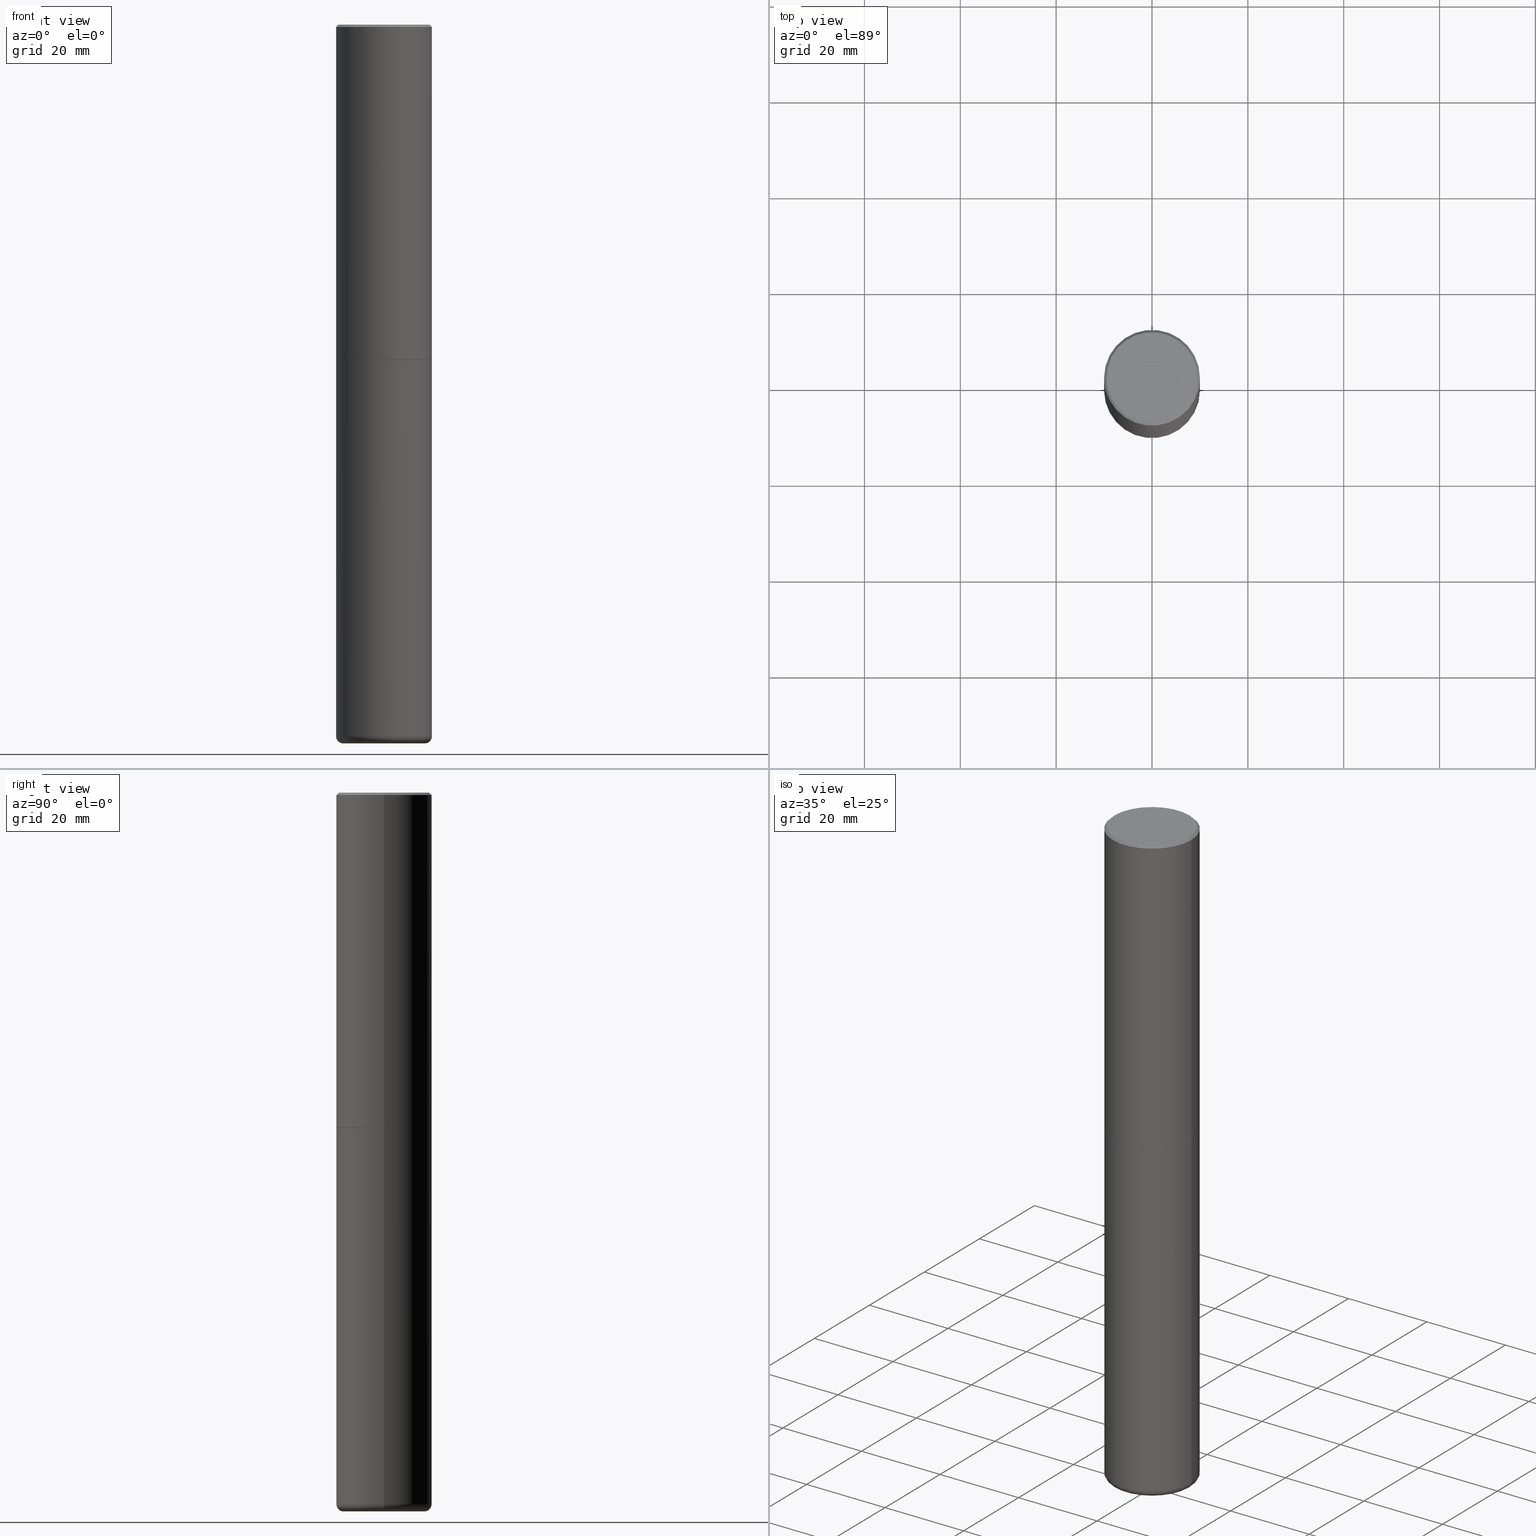
[diagram: canonical four-view strip — front | top / right | iso, engineering-drawing reading convention]
A machine part, canonical four-view strip (front | top / right | iso — engineering-drawing reading convention). The complete STEP part file that produces these views, byte-faithful:
ISO-10303-21;
HEADER;
FILE_DESCRIPTION (( 'STEP AP203' ),
    '1' );
FILE_NAME ('44882.STEP',
    '2024-03-04T13:11:06',
    ( '' ),
    ( '' ),
    'SwSTEP 2.0',
    'SolidWorks 2023',
    '' );
FILE_SCHEMA (( 'CONFIG_CONTROL_DESIGN' ));
ENDSEC;

DATA;
#1 = LOCAL_TIME ( 8, 11, 6.000000000000000000, #58 ) ;
#2 = EDGE_CURVE ( 'NONE', #274, #20, #152, .T. ) ;
#3 = FACE_OUTER_BOUND ( 'NONE', #157, .T. ) ;
#4 = PERSON_AND_ORGANIZATION ( #118, #30 ) ;
#5 = DIRECTION ( 'NONE',  ( -2.445468806185136597E-29, 3.491481338843145583E-15, 1.000000000000000000 ) ) ;
#6 = LINE ( 'NONE', #253, #263 ) ;
#7 =( GEOMETRIC_REPRESENTATION_CONTEXT ( 3 ) GLOBAL_UNCERTAINTY_ASSIGNED_CONTEXT ( ( #303 ) ) GLOBAL_UNIT_ASSIGNED_CONTEXT ( ( #276, #181, #353 ) ) REPRESENTATION_CONTEXT ( 'NONE', 'WORKASPACE' ) );
#8 = CARTESIAN_POINT ( 'NONE',  ( 4.890937612370294178E-31, -6.982962677686321191E-17, -0.02000000000000008715 ) ) ;
#9 = FACE_OUTER_BOUND ( 'NONE', #377, .T. ) ;
#10 = DIRECTION ( 'NONE',  ( -2.445468806185136597E-29, 3.491481338843145583E-15, 1.000000000000000000 ) ) ;
#11 = CARTESIAN_POINT ( 'NONE',  ( 0.3937000000000000499, -1.237136582792290287E-14, -2.755899999999998240 ) ) ;
#12 = CC_DESIGN_DATE_AND_TIME_ASSIGNMENT ( #161, #119, ( #140 ) ) ;
#13 = CIRCLE ( 'NONE', #270, 0.3937000000000000499 ) ;
#14 = DIRECTION ( 'NONE',  ( -2.445468806185136597E-29, 3.491481338843145583E-15, 1.000000000000000000 ) ) ;
#15 = CARTESIAN_POINT ( 'NONE',  ( 0.3937000000000002164, -2.749192406205084794E-15, 1.919750796630861012E-29 ) ) ;
#16 = CC_DESIGN_PERSON_AND_ORGANIZATION_ASSIGNMENT ( #124, #94, ( #168 ) ) ;
#17 = FACE_OUTER_BOUND ( 'NONE', #417, .T. ) ;
#18 = MANIFOLD_SOLID_BREP ( 'Body-Move/Copy2[1]', #178 ) ;
#19 = ORIENTED_EDGE ( 'NONE', *, *, #304, .F. ) ;
#20 = VERTEX_POINT ( 'NONE', #57 ) ;
#21 = CARTESIAN_POINT ( 'NONE',  ( 0.3926999999999999935, -1.236438286524521528E-14, -2.755899999999998240 ) ) ;
#22 = ADVANCED_FACE ( 'NONE', ( #95 ), #415, .F. ) ;
#23 = AXIS2_PLACEMENT_3D ( 'NONE', #192, #5, #31 ) ;
#24 = CIRCLE ( 'NONE', #321, 0.3937000000000001054 ) ;
#25 = CALENDAR_DATE ( 2024, 4, 3 ) ;
#26 = CARTESIAN_POINT ( 'NONE',  ( 2.609533152651357803E-15, 0.3737000000000000322, -1.270618476404880419E-15 ) ) ;
#27 = ADVANCED_FACE ( 'NONE', ( #127 ), #390, .T. ) ;
#28 = ORIENTED_EDGE ( 'NONE', *, *, #2, .F. ) ;
#29 = CIRCLE ( 'NONE', #34, 0.3937000000000004385 ) ;
#30 = ORGANIZATION ( 'UNSPECIFIED', 'UNSPECIFIED', '' ) ;
#31 = DIRECTION ( 'NONE',  ( 1.000000000000000000, -6.982962677686263555E-15, 4.883557194083111219E-29 ) ) ;
#32 = CARTESIAN_POINT ( 'NONE',  ( -0.3937000000000002164, -1.761518974872504126E-14, -5.846399999999999153 ) ) ;
#33 = CONICAL_SURFACE ( 'NONE', #91, 0.3937000000000000499, 0.7853981633974442822 ) ;
#34 = AXIS2_PLACEMENT_3D ( 'NONE', #45, #182, #74 ) ;
#35 = PLANE ( 'NONE',  #319 ) ;
#36 = DIRECTION ( 'NONE',  ( 0.7071067811867647324, -2.468850131084532135E-15, 0.7071067811863303021 ) ) ;
#37 = EDGE_CURVE ( 'NONE', #75, #260, #6, .T. ) ;
#38 = DIRECTION ( 'NONE',  ( 1.000000000000000000, -6.982962677686266711E-15, 0.000000000000000000 ) ) ;
#39 = AXIS2_PLACEMENT_3D ( 'NONE', #138, #284, #116 ) ;
#40 = LINE ( 'NONE', #308, #416 ) ;
#41 = LOCAL_TIME ( 8, 11, 6.000000000000000000, #123 ) ;
#42 = LINE ( 'NONE', #369, #313 ) ;
#43 = ADVANCED_FACE ( 'NONE', ( #188 ), #130, .T. ) ;
#44 = LINE ( 'NONE', #273, #136 ) ;
#45 = CARTESIAN_POINT ( 'NONE',  ( 6.737022014159429266E-29, -9.618681940378976650E-15, -2.754899999999998350 ) ) ;
#46 = ADVANCED_FACE ( 'NONE', ( #9 ), #35, .F. ) ;
#47 = ORIENTED_EDGE ( 'NONE', *, *, #2, .T. ) ;
#48 = PERSON_AND_ORGANIZATION_ROLE ( 'creator' ) ;
#49 = APPLICATION_CONTEXT ( 'configuration controlled 3d designs of mechanical parts and assemblies' ) ;
#50 = ORIENTED_EDGE ( 'NONE', *, *, #403, .F. ) ;
#51 = DIMENSIONAL_EXPONENTS ( 1.000000000000000000, 0.000000000000000000, 0.000000000000000000, 0.000000000000000000, 0.000000000000000000, 0.000000000000000000, 0.000000000000000000 ) ;
#52 = EDGE_LOOP ( 'NONE', ( #341, #209 ) ) ;
#53 = EDGE_CURVE ( 'NONE', #208, #160, #142, .T. ) ;
#54 = ORIENTED_EDGE ( 'NONE', *, *, #37, .F. ) ;
#55 = SHAPE_DEFINITION_REPRESENTATION ( #77, #400 ) ;
#56 = DIRECTION ( 'NONE',  ( 1.000000000000000000, -6.982962677686266711E-15, 4.876176775795935793E-29 ) ) ;
#57 = CARTESIAN_POINT ( 'NONE',  ( -0.3346000000000000085, -1.792832840070497370E-14, -5.905499999999999972 ) ) ;
#58 = COORDINATED_UNIVERSAL_TIME_OFFSET ( 5, 0, .BEHIND. ) ;
#59 = AXIS2_PLACEMENT_3D ( 'NONE', #134, #235, #105 ) ;
#60 = CC_DESIGN_APPROVAL ( #166, ( #265 ) ) ;
#61 = DIRECTION ( 'NONE',  ( -1.000000000000000000, 6.982962677686265922E-15, -4.876176775795935793E-29 ) ) ;
#62 = DIRECTION ( 'NONE',  ( -2.445468806185136597E-29, 3.491481338843145583E-15, 1.000000000000000000 ) ) ;
#63 = ORIENTED_EDGE ( 'NONE', *, *, #304, .T. ) ;
#64 = CC_DESIGN_PERSON_AND_ORGANIZATION_ASSIGNMENT ( #382, #48, ( #140 ) ) ;
#65 = DIRECTION ( 'NONE',  ( -2.445468806185136597E-29, 3.491481338843145583E-15, 1.000000000000000000 ) ) ;
#66 = DIRECTION ( 'NONE',  ( -2.445468806185136597E-29, 3.491481338843145583E-15, 1.000000000000000000 ) ) ;
#67 = CC_DESIGN_APPROVAL ( #285, ( #168 ) ) ;
#68 = DIRECTION ( 'NONE',  ( -1.000000000000000000, 6.982962677686265922E-15, 0.000000000000000000 ) ) ;
#69 = ADVANCED_FACE ( 'NONE', ( #106 ), #33, .T. ) ;
#70 = CARTESIAN_POINT ( 'NONE',  ( -0.3937000000000000499, 2.679362779428219918E-15, -0.02000000000000008715 ) ) ;
#71 = DIRECTION ( 'NONE',  ( 0.7071067811865446862, -7.319954787623245001E-15, -0.7071067811865503483 ) ) ;
#72 = LINE ( 'NONE', #76, #234 ) ;
#73 = AXIS2_PLACEMENT_3D ( 'NONE', #26, #163, #61 ) ;
#74 = DIRECTION ( 'NONE',  ( 1.000000000000000000, -6.982962677686265922E-15, 0.000000000000000000 ) ) ;
#75 = VERTEX_POINT ( 'NONE', #32 ) ;
#76 = CARTESIAN_POINT ( 'NONE',  ( 0.3937000000000001054, -2.749192406205084005E-15, 1.919750796630860452E-29 ) ) ;
#77 = PRODUCT_DEFINITION_SHAPE ( 'NONE', 'NONE',  #140 ) ;
#78 = DIRECTION ( 'NONE',  ( -2.445468806185136597E-29, 3.491481338843145583E-15, 1.000000000000000000 ) ) ;
#79 = VERTEX_POINT ( 'NONE', #333 ) ;
#80 = CARTESIAN_POINT ( 'NONE',  ( -0.3937000000000000499, -1.221997820987767425E-14, -2.755899999999998240 ) ) ;
#81 = EDGE_LOOP ( 'NONE', ( #93, #214, #312, #87 ) ) ;
#82 = APPROVAL_PERSON_ORGANIZATION ( #183, #166, #190 ) ;
#83 = EDGE_CURVE ( 'NONE', #75, #207, #401, .T. ) ;
#84 = ORIENTED_EDGE ( 'NONE', *, *, #216, .F. ) ;
#85 = MECHANICAL_CONTEXT ( 'NONE', #49, 'mechanical' ) ;
#86 = DIRECTION ( 'NONE',  ( -2.445468806185136597E-29, 3.491481338843145583E-15, 1.000000000000000000 ) ) ;
#87 = ORIENTED_EDGE ( 'NONE', *, *, #177, .F. ) ;
#88 = EDGE_LOOP ( 'NONE', ( #350, #295, #84, #409 ) ) ;
#89 = APPROVAL_DATE_TIME ( #155, #166 ) ;
#90 = EDGE_CURVE ( 'NONE', #291, #293, #367, .T. ) ;
#91 = AXIS2_PLACEMENT_3D ( 'NONE', #8, #395, #68 ) ;
#92 = COORDINATED_UNIVERSAL_TIME_OFFSET ( 5, 0, .BEHIND. ) ;
#93 = ORIENTED_EDGE ( 'NONE', *, *, #121, .F. ) ;
#94 = PERSON_AND_ORGANIZATION_ROLE ( 'creator' ) ;
#95 = FACE_OUTER_BOUND ( 'NONE', #52, .T. ) ;
#96 = VECTOR ( 'NONE', #358, 39.37007874015748143 ) ;
#97 = ORIENTED_EDGE ( 'NONE', *, *, #162, .T. ) ;
#98 = CARTESIAN_POINT ( 'NONE',  ( 6.739467482965614869E-29, -9.622173421717819657E-15, -2.755899999999998240 ) ) ;
#99 = DIRECTION ( 'NONE',  ( -2.438088387897960049E-29, 3.491481338843145188E-15, 1.000000000000000000 ) ) ;
#100 = DIRECTION ( 'NONE',  ( -2.445468806185136597E-29, 3.491481338843145583E-15, 1.000000000000000000 ) ) ;
#101 = ADVANCED_FACE ( 'NONE', ( #175 ), #230, .T. ) ;
#102 = DIRECTION ( 'NONE',  ( 1.000000000000000000, -6.982962677686265133E-15, 0.000000000000000000 ) ) ;
#103 = DIRECTION ( 'NONE',  ( 2.438088387897960049E-29, -3.491481338843145188E-15, -1.000000000000000000 ) ) ;
#104 = FACE_OUTER_BOUND ( 'NONE', #81, .T. ) ;
#105 = DIRECTION ( 'NONE',  ( 1.000000000000000000, -6.982962677686267499E-15, 0.000000000000000000 ) ) ;
#106 = FACE_OUTER_BOUND ( 'NONE', #247, .T. ) ;
#107 = DIRECTION ( 'NONE',  ( -2.445468806185136877E-29, 3.491481338843145188E-15, 1.000000000000000000 ) ) ;
#108 = LOCAL_TIME ( 8, 11, 6.000000000000000000, #376 ) ;
#109 = DIRECTION ( 'NONE',  ( -2.445468806185136597E-29, 3.491481338843145583E-15, 1.000000000000000000 ) ) ;
#110 = CARTESIAN_POINT ( 'NONE',  ( 6.739467482965614869E-29, -9.622173421717819657E-15, -2.755899999999998240 ) ) ;
#111 = ORIENTED_EDGE ( 'NONE', *, *, #396, .F. ) ;
#112 = DIRECTION ( 'NONE',  ( -2.445468806185136597E-29, 3.491481338843145583E-15, 1.000000000000000000 ) ) ;
#113 = CARTESIAN_POINT ( 'NONE',  ( 0.3737000000000000322, -2.667287895133368753E-15, 6.829619984162503241E-17 ) ) ;
#114 = ADVANCED_FACE ( 'NONE', ( #392 ), #172, .T. ) ;
#115 = ORIENTED_EDGE ( 'NONE', *, *, #83, .T. ) ;
#116 = DIRECTION ( 'NONE',  ( 1.000000000000000000, -6.982962677686265133E-15, 0.000000000000000000 ) ) ;
#117 = CIRCLE ( 'NONE', #362, 0.3346000000000000085 ) ;
#118 = PERSON ( 'UNSPECIFIED', 'UNSPECIFIED', 'UNSPECIFIED', ('UNSPECIFIED'), ('UNSPECIFIED'), ('UNSPECIFIED') ) ;
#119 = DATE_TIME_ROLE ( 'creation_date' ) ;
#120 = EDGE_LOOP ( 'NONE', ( #280, #63, #282, #261 ) ) ;
#121 = EDGE_CURVE ( 'NONE', #291, #160, #170, .T. ) ;
#122 = ORIENTED_EDGE ( 'NONE', *, *, #121, .T. ) ;
#123 = COORDINATED_UNIVERSAL_TIME_OFFSET ( 5, 0, .BEHIND. ) ;
#124 = PERSON_AND_ORGANIZATION ( #118, #30 ) ;
#125 = AXIS2_PLACEMENT_3D ( 'NONE', #370, #78, #250 ) ;
#126 = ORIENTED_EDGE ( 'NONE', *, *, #146, .F. ) ;
#127 = FACE_OUTER_BOUND ( 'NONE', #413, .T. ) ;
#128 = PERSON_AND_ORGANIZATION_ROLE ( 'classification_officer' ) ;
#129 = DIRECTION ( 'NONE',  ( 1.000000000000000000, -6.982962677686269866E-15, 0.000000000000000000 ) ) ;
#130 = CONICAL_SURFACE ( 'NONE', #366, 0.3937000000000000499, 0.7853981633974442822 ) ;
#131 = CARTESIAN_POINT ( 'NONE',  ( 1.444171603492632270E-28, -2.061894304653819197E-14, -5.905499999999999972 ) ) ;
#132 = EDGE_CURVE ( 'NONE', #286, #293, #40, .T. ) ;
#133 = DIRECTION ( 'NONE',  ( -2.445468806185136597E-29, 3.491481338843145583E-15, 1.000000000000000000 ) ) ;
#134 = CARTESIAN_POINT ( 'NONE',  ( 6.739467482965614869E-29, -9.622173421717819657E-15, -2.755899999999998240 ) ) ;
#135 = DIRECTION ( 'NONE',  ( 1.000000000000000000, -6.982962677686265922E-15, 0.000000000000000000 ) ) ;
#136 = VECTOR ( 'NONE', #310, 39.37007874015748143 ) ;
#137 = DIRECTION ( 'NONE',  ( 1.000000000000000000, -6.982962677686265922E-15, 0.000000000000000000 ) ) ;
#138 = CARTESIAN_POINT ( 'NONE',  ( 6.739467482965614869E-29, -9.622173421717819657E-15, -2.755899999999998240 ) ) ;
#139 = ORIENTED_EDGE ( 'NONE', *, *, #396, .T. ) ;
#140 = PRODUCT_DEFINITION ( 'UNKNOWN', '', #168, #411 ) ;
#141 = CARTESIAN_POINT ( 'NONE',  ( 1.429718882848077913E-28, -2.041259649941256157E-14, -5.846399999999999153 ) ) ;
#142 = CIRCLE ( 'NONE', #299, 0.3937000000000000499 ) ;
#143 = AXIS2_PLACEMENT_3D ( 'NONE', #269, #66, #264 ) ;
#144 = DIRECTION ( 'NONE',  ( 1.000000000000000000, -6.982962677686265133E-15, 0.000000000000000000 ) ) ;
#145 = CC_DESIGN_APPROVAL ( #275, ( #140 ) ) ;
#146 = EDGE_CURVE ( 'NONE', #79, #160, #305, .T. ) ;
#147 = CARTESIAN_POINT ( 'NONE',  ( 0.3346000000000000085, -2.295544235849201754E-14, -5.905499999999999972 ) ) ;
#148 = VERTEX_POINT ( 'NONE', #11 ) ;
#149 = DIRECTION ( 'NONE',  ( 1.000000000000000000, -6.982962677686267499E-15, 0.000000000000000000 ) ) ;
#150 = APPROVAL_DATE_TIME ( #213, #285 ) ;
#151 = CARTESIAN_POINT ( 'NONE',  ( 0.000000000000000000, 0.000000000000000000, 0.000000000000000000 ) ) ;
#152 = CIRCLE ( 'NONE', #277, 0.3346000000000000085 ) ;
#153 = CONICAL_SURFACE ( 'NONE', #334, 0.3926999999999999935, 0.7853981633977554777 ) ;
#154 = LOCAL_TIME ( 8, 11, 6.000000000000000000, #92 ) ;
#155 = DATE_AND_TIME ( #25, #173 ) ;
#156 = DIRECTION ( 'NONE',  ( 0.000000000000000000, 0.000000000000000000, 1.000000000000000000 ) ) ;
#157 = EDGE_LOOP ( 'NONE', ( #54, #115, #180, #255 ) ) ;
#158 = DIRECTION ( 'NONE',  ( -1.000000000000000000, 7.105427357601027102E-15, 0.000000000000000000 ) ) ;
#159 = CIRCLE ( 'NONE', #205, 0.3926999999999999935 ) ;
#160 = VERTEX_POINT ( 'NONE', #70 ) ;
#161 = DATE_AND_TIME ( #252, #108 ) ;
#162 = EDGE_CURVE ( 'NONE', #20, #274, #117, .T. ) ;
#163 = DIRECTION ( 'NONE',  ( 2.438088387897960049E-29, -3.491481338843145188E-15, -1.000000000000000000 ) ) ;
#164 = DIRECTION ( 'NONE',  ( 1.000000000000000000, -6.982962677686296687E-15, 0.000000000000000000 ) ) ;
#165 = ORIENTED_EDGE ( 'NONE', *, *, #257, .F. ) ;
#166 = APPROVAL ( #348, 'UNSPECIFIED' ) ;
#167 = AXIS2_PLACEMENT_3D ( 'NONE', #256, #156, #387 ) ;
#168 = PRODUCT_DEFINITION_FORMATION_WITH_SPECIFIED_SOURCE ( 'ANY', '', #237, .NOT_KNOWN. ) ;
#169 = DIRECTION ( 'NONE',  ( 1.000000000000000000, -6.982962677686265922E-15, 4.876176775795935793E-29 ) ) ;
#170 = LINE ( 'NONE', #199, #391 ) ;
#171 = DIRECTION ( 'NONE',  ( -2.445468806185136597E-29, 3.491481338843145583E-15, 1.000000000000000000 ) ) ;
#172 = CONICAL_SURFACE ( 'NONE', #307, 0.3926999999999999935, 0.7853981633977554777 ) ;
#173 = LOCAL_TIME ( 8, 11, 6.000000000000000000, #418 ) ;
#174 = ADVANCED_FACE ( 'NONE', ( #104 ), #364, .T. ) ;
#175 = FACE_OUTER_BOUND ( 'NONE', #258, .T. ) ;
#176 = FACE_OUTER_BOUND ( 'NONE', #245, .T. ) ;
#177 = EDGE_CURVE ( 'NONE', #160, #208, #314, .T. ) ;
#178 = CLOSED_SHELL ( 'NONE', ( #236, #27, #22, #335, #268, #354 ) ) ;
#179 = AXIS2_PLACEMENT_3D ( 'NONE', #315, #406, #397 ) ;
#180 = ORIENTED_EDGE ( 'NONE', *, *, #410, .T. ) ;
#181 =( NAMED_UNIT ( * ) PLANE_ANGLE_UNIT ( ) SI_UNIT ( $, .RADIAN. ) );
#182 = DIRECTION ( 'NONE',  ( -2.445468806185136597E-29, 3.491481338843145583E-15, 1.000000000000000000 ) ) ;
#183 = PERSON_AND_ORGANIZATION ( #118, #30 ) ;
#184 = CIRCLE ( 'NONE', #329, 0.05910000000000026343 ) ;
#185 = DIRECTION ( 'NONE',  ( -1.000000000000000000, 6.982962677686265922E-15, -4.876176775795935793E-29 ) ) ;
#186 = EDGE_LOOP ( 'NONE', ( #28, #378 ) ) ;
#187 = DIRECTION ( 'NONE',  ( 1.000000000000000000, -6.982962677686269866E-15, 0.000000000000000000 ) ) ;
#188 = FACE_OUTER_BOUND ( 'NONE', #357, .T. ) ;
#189 = EDGE_CURVE ( 'NONE', #79, #283, #210, .T. ) ;
#190 = APPROVAL_ROLE ( '' ) ;
#191 = TOROIDAL_SURFACE ( 'NONE', #125, 0.3346000000000000085, 0.05910000000000026343 ) ;
#192 = CARTESIAN_POINT ( 'NONE',  ( 1.429718882848077913E-28, -2.041259649941256157E-14, -5.846399999999999153 ) ) ;
#193 = ORIENTED_EDGE ( 'NONE', *, *, #342, .T. ) ;
#194 = EDGE_CURVE ( 'NONE', #286, #381, #159, .T. ) ;
#195 = FACE_OUTER_BOUND ( 'NONE', #186, .T. ) ;
#196 = DIRECTION ( 'NONE',  ( 2.445468806185136597E-29, -3.491481338843145583E-15, -1.000000000000000000 ) ) ;
#197 = AXIS2_PLACEMENT_3D ( 'NONE', #238, #229, #164 ) ;
#198 = APPLICATION_CONTEXT ( 'configuration controlled 3d designs of mechanical parts and assemblies' ) ;
#199 = CARTESIAN_POINT ( 'NONE',  ( -0.3937000000000002164, 2.797406750687515970E-15, -1.936584745033357576E-29 ) ) ;
#200 = CARTESIAN_POINT ( 'NONE',  ( -0.3926999999999999935, -6.826573644039681899E-15, -2.755899999999998240 ) ) ;
#201 = CARTESIAN_POINT ( 'NONE',  ( 0.000000000000000000, 0.000000000000000000, 0.000000000000000000 ) ) ;
#202 = CC_DESIGN_PERSON_AND_ORGANIZATION_ASSIGNMENT ( #217, #128, ( #265 ) ) ;
#203 = DIRECTION ( 'NONE',  ( 1.000000000000000000, -6.982962677686266711E-15, 0.000000000000000000 ) ) ;
#204 = DIRECTION ( 'NONE',  ( -2.445468806185136877E-29, 3.491481338843145188E-15, 1.000000000000000000 ) ) ;
#205 = AXIS2_PLACEMENT_3D ( 'NONE', #110, #86, #144 ) ;
#206 = DIRECTION ( 'NONE',  ( -2.445468806185136877E-29, 3.491481338843145188E-15, 1.000000000000000000 ) ) ;
#207 = VERTEX_POINT ( 'NONE', #243 ) ;
#208 = VERTEX_POINT ( 'NONE', #211 ) ;
#209 = ORIENTED_EDGE ( 'NONE', *, *, #371, .T. ) ;
#210 = CIRCLE ( 'NONE', #218, 0.3737000000000000322 ) ;
#211 = CARTESIAN_POINT ( 'NONE',  ( 0.3937000000000000499, -2.770807688499515734E-15, -0.02000000000000008715 ) ) ;
#212 = ORIENTED_EDGE ( 'NONE', *, *, #403, .T. ) ;
#213 = DATE_AND_TIME ( #320, #1 ) ;
#214 = ORIENTED_EDGE ( 'NONE', *, *, #90, .T. ) ;
#215 = PERSON_AND_ORGANIZATION ( #118, #30 ) ;
#216 = EDGE_CURVE ( 'NONE', #293, #291, #29, .T. ) ;
#217 = PERSON_AND_ORGANIZATION ( #118, #30 ) ;
#218 = AXIS2_PLACEMENT_3D ( 'NONE', #272, #266, #240 ) ;
#219 = CC_DESIGN_SECURITY_CLASSIFICATION ( #265, ( #168 ) ) ;
#220 = ORIENTED_EDGE ( 'NONE', *, *, #83, .F. ) ;
#221 = CALENDAR_DATE ( 2024, 4, 3 ) ;
#222 = DIRECTION ( 'NONE',  ( -2.445468806185136597E-29, 3.491481338843145583E-15, 1.000000000000000000 ) ) ;
#223 = EDGE_CURVE ( 'NONE', #381, #291, #44, .T. ) ;
#224 = DATE_TIME_ROLE ( 'classification_date' ) ;
#225 = PLANE ( 'NONE',  #73 ) ;
#226 = VECTOR ( 'NONE', #107, 39.37007874015748143 ) ;
#227 = ORIENTED_EDGE ( 'NONE', *, *, #393, .F. ) ;
#228 = CC_DESIGN_DATE_AND_TIME_ASSIGNMENT ( #351, #224, ( #265 ) ) ;
#229 = DIRECTION ( 'NONE',  ( -6.982962677686266711E-15, -1.000000000000000000, 3.491481338843145583E-15 ) ) ;
#230 = CYLINDRICAL_SURFACE ( 'NONE', #349, 0.3937000000000002164 ) ;
#231 = CARTESIAN_POINT ( 'NONE',  ( 1.429718882848077913E-28, -2.041259649941256157E-14, -5.846399999999999153 ) ) ;
#232 = CARTESIAN_POINT ( 'NONE',  ( 1.444171603492632270E-28, -2.061894304653819197E-14, -5.905499999999999972 ) ) ;
#233 = CARTESIAN_POINT ( 'NONE',  ( 6.739467482965614869E-29, -9.622173421717819657E-15, -2.755899999999998240 ) ) ;
#234 = VECTOR ( 'NONE', #206, 39.37007874015748143 ) ;
#235 = DIRECTION ( 'NONE',  ( -2.445468806185136597E-29, 3.491481338843145583E-15, 1.000000000000000000 ) ) ;
#236 = ADVANCED_FACE ( 'NONE', ( #176 ), #279, .T. ) ;
#237 = PRODUCT ( '44882', '44882', '', ( #85 ) ) ;
#238 = CARTESIAN_POINT ( 'NONE',  ( 0.3346000000000000085, -2.274909581136638714E-14, -5.846399999999999153 ) ) ;
#239 = CARTESIAN_POINT ( 'NONE',  ( 4.890937612370294178E-31, -6.982962677686321191E-17, -0.02000000000000008715 ) ) ;
#240 = DIRECTION ( 'NONE',  ( 1.000000000000000000, -6.982962677686266711E-15, 4.877734241229875126E-29 ) ) ;
#241 = CLOSED_SHELL ( 'NONE', ( #114, #101, #69, #43, #174, #365, #46, #317 ) ) ;
#242 = CC_DESIGN_PERSON_AND_ORGANIZATION_ASSIGNMENT ( #345, #414, ( #168 ) ) ;
#243 = CARTESIAN_POINT ( 'NONE',  ( 0.3937000000000002164, -2.316178890561765109E-14, -5.846399999999999153 ) ) ;
#244 = ORIENTED_EDGE ( 'NONE', *, *, #216, .T. ) ;
#245 = EDGE_LOOP ( 'NONE', ( #139, #372, #316, #331 ) ) ;
#246 = CARTESIAN_POINT ( 'NONE',  ( 0.3937000000000004385, -1.236787434658406144E-14, -2.754899999999998350 ) ) ;
#247 = EDGE_LOOP ( 'NONE', ( #50, #347, #383, #126 ) ) ;
#248 = ORIENTED_EDGE ( 'NONE', *, *, #53, .F. ) ;
#249 = AXIS2_PLACEMENT_3D ( 'NONE', #151, #222, #56 ) ;
#250 = DIRECTION ( 'NONE',  ( 1.000000000000000000, -6.982962677686263555E-15, 4.883557194083111219E-29 ) ) ;
#251 = ORIENTED_EDGE ( 'NONE', *, *, #177, .T. ) ;
#252 = CALENDAR_DATE ( 2024, 4, 3 ) ;
#253 = CARTESIAN_POINT ( 'NONE',  ( -0.3937000000000001054, 2.797406750687515181E-15, -1.936584745033357016E-29 ) ) ;
#254 = APPROVAL_STATUS ( 'not_yet_approved' ) ;
#255 = ORIENTED_EDGE ( 'NONE', *, *, #371, .F. ) ;
#256 = CARTESIAN_POINT ( 'NONE',  ( 0.000000000000000000, 0.000000000000000000, 0.000000000000000000 ) ) ;
#257 = EDGE_CURVE ( 'NONE', #293, #208, #311, .T. ) ;
#258 = EDGE_LOOP ( 'NONE', ( #244, #122, #248, #165 ) ) ;
#259 = APPLICATION_PROTOCOL_DEFINITION ( 'international standard', 'config_control_design', 1994, #198 ) ;
#260 = VERTEX_POINT ( 'NONE', #80 ) ;
#261 = ORIENTED_EDGE ( 'NONE', *, *, #90, .F. ) ;
#262 = DIRECTION ( 'NONE',  ( -1.000000000000000000, 6.982962677686265922E-15, -4.876176775795935793E-29 ) ) ;
#263 = VECTOR ( 'NONE', #380, 39.37007874015748143 ) ;
#264 = DIRECTION ( 'NONE',  ( 1.000000000000000000, -6.982962677686265922E-15, 0.000000000000000000 ) ) ;
#265 = SECURITY_CLASSIFICATION ( '', '', #287 ) ;
#266 = DIRECTION ( 'NONE',  ( -2.445468806185136597E-29, 3.491481338843145583E-15, 1.000000000000000000 ) ) ;
#267 = DIRECTION ( 'NONE',  ( 1.000000000000000000, -6.982962677686266711E-15, 4.876176775795935793E-29 ) ) ;
#268 = ADVANCED_FACE ( 'NONE', ( #17 ), #191, .T. ) ;
#269 = CARTESIAN_POINT ( 'NONE',  ( 6.737022014159429266E-29, -9.618681940378976650E-15, -2.754899999999998350 ) ) ;
#270 = AXIS2_PLACEMENT_3D ( 'NONE', #373, #343, #149 ) ;
#271 = APPROVAL_PERSON_ORGANIZATION ( #328, #285, #318 ) ;
#272 = CARTESIAN_POINT ( 'NONE',  ( -1.670162262936351711E-45, 2.384549072608715520E-31, 6.829619984160658046E-17 ) ) ;
#273 = CARTESIAN_POINT ( 'NONE',  ( -0.3926999999999999935, -6.831872098387905090E-15, -2.755899999999998240 ) ) ;
#274 = VERTEX_POINT ( 'NONE', #147 ) ;
#275 = APPROVAL ( #326, 'UNSPECIFIED' ) ;
#276 =( CONVERSION_BASED_UNIT ( 'INCH', #309 ) LENGTH_UNIT ( ) NAMED_UNIT ( #51 ) );
#277 = AXIS2_PLACEMENT_3D ( 'NONE', #330, #62, #187 ) ;
#278 = CIRCLE ( 'NONE', #39, 0.3926999999999999935 ) ;
#279 = CYLINDRICAL_SURFACE ( 'NONE', #179, 0.3937000000000001054 ) ;
#280 = ORIENTED_EDGE ( 'NONE', *, *, #223, .F. ) ;
#281 = CARTESIAN_POINT ( 'NONE',  ( -0.3937000000000004385, -2.046849032890400849E-15, -2.754899999999998350 ) ) ;
#282 = ORIENTED_EDGE ( 'NONE', *, *, #132, .T. ) ;
#283 = VERTEX_POINT ( 'NONE', #113 ) ;
#284 = DIRECTION ( 'NONE',  ( -2.445468806185136597E-29, 3.491481338843145583E-15, 1.000000000000000000 ) ) ;
#285 = APPROVAL ( #254, 'UNSPECIFIED' ) ;
#286 = VERTEX_POINT ( 'NONE', #21 ) ;
#287 = SECURITY_CLASSIFICATION_LEVEL ( 'unclassified' ) ;
#288 = AXIS2_PLACEMENT_3D ( 'NONE', #232, #103, #262 ) ;
#289 = ORIENTED_EDGE ( 'NONE', *, *, #189, .T. ) ;
#290 = APPROVAL_ROLE ( '' ) ;
#291 = VERTEX_POINT ( 'NONE', #281 ) ;
#292 = DIRECTION ( 'NONE',  ( 2.438088387897960049E-29, -3.491481338843145188E-15, -1.000000000000000000 ) ) ;
#293 = VERTEX_POINT ( 'NONE', #246 ) ;
#294 = AXIS2_PLACEMENT_3D ( 'NONE', #337, #112, #399 ) ;
#295 = ORIENTED_EDGE ( 'NONE', *, *, #223, .T. ) ;
#296 = EDGE_CURVE ( 'NONE', #148, #260, #13, .T. ) ;
#297 = MANIFOLD_SOLID_BREP ( 'Body-Move/Copy2[2]', #241 ) ;
#298 = DIRECTION ( 'NONE',  ( 1.000000000000000000, -6.982962677686265133E-15, 0.000000000000000000 ) ) ;
#299 = AXIS2_PLACEMENT_3D ( 'NONE', #306, #133, #135 ) ;
#300 = CARTESIAN_POINT ( 'NONE',  ( 4.890937612370294178E-31, -6.982962677686321191E-17, -0.02000000000000008715 ) ) ;
#301 = PLANE ( 'NONE',  #288 ) ;
#302 = CARTESIAN_POINT ( 'NONE',  ( 6.739467482965614869E-29, -9.622173421717819657E-15, -2.755899999999998240 ) ) ;
#303 = UNCERTAINTY_MEASURE_WITH_UNIT (LENGTH_MEASURE( 1.000000000000000082E-05 ), #276, 'distance_accuracy_value', 'NONE');
#304 = EDGE_CURVE ( 'NONE', #381, #286, #278, .T. ) ;
#305 = LINE ( 'NONE', #338, #96 ) ;
#306 = CARTESIAN_POINT ( 'NONE',  ( 4.890937612370294178E-31, -6.982962677686321191E-17, -0.02000000000000008715 ) ) ;
#307 = AXIS2_PLACEMENT_3D ( 'NONE', #233, #14, #102 ) ;
#308 = CARTESIAN_POINT ( 'NONE',  ( 0.3926999999999999935, -1.236438286524521528E-14, -2.755899999999998240 ) ) ;
#309 = LENGTH_MEASURE_WITH_UNIT ( LENGTH_MEASURE( 0.02539999999999999897 ), #340 );
#310 = DIRECTION ( 'NONE',  ( -0.7071067811867647324, 7.493145998871139866E-15, 0.7071067811863303021 ) ) ;
#311 = LINE ( 'NONE', #15, #226 ) ;
#312 = ORIENTED_EDGE ( 'NONE', *, *, #257, .T. ) ;
#313 = VECTOR ( 'NONE', #71, 39.37007874015748143 ) ;
#314 = CIRCLE ( 'NONE', #374, 0.3937000000000000499 ) ;
#315 = CARTESIAN_POINT ( 'NONE',  ( 0.000000000000000000, 0.000000000000000000, 0.000000000000000000 ) ) ;
#316 = ORIENTED_EDGE ( 'NONE', *, *, #296, .F. ) ;
#317 = ADVANCED_FACE ( 'NONE', ( #325 ), #225, .F. ) ;
#318 = APPROVAL_ROLE ( '' ) ;
#319 = AXIS2_PLACEMENT_3D ( 'NONE', #302, #99, #169 ) ;
#320 = CALENDAR_DATE ( 2024, 4, 3 ) ;
#321 = AXIS2_PLACEMENT_3D ( 'NONE', #141, #109, #203 ) ;
#322 = CC_DESIGN_PERSON_AND_ORGANIZATION_ASSIGNMENT ( #215, #408, ( #237 ) ) ;
#323 = ORIENTED_EDGE ( 'NONE', *, *, #342, .F. ) ;
#324 = APPLICATION_PROTOCOL_DEFINITION ( 'international standard', 'config_control_design', 1994, #49 ) ;
#325 = FACE_OUTER_BOUND ( 'NONE', #389, .T. ) ;
#326 = APPROVAL_STATUS ( 'not_yet_approved' ) ;
#327 = CARTESIAN_POINT ( 'NONE',  ( -0.3346000000000000085, -1.803512050555926628E-14, -5.846399999999999153 ) ) ;
#328 = PERSON_AND_ORGANIZATION ( #118, #30 ) ;
#329 = AXIS2_PLACEMENT_3D ( 'NONE', #327, #379, #158 ) ;
#330 = CARTESIAN_POINT ( 'NONE',  ( 1.444171603492632270E-28, -2.061894304653819197E-14, -5.905499999999999972 ) ) ;
#331 = ORIENTED_EDGE ( 'NONE', *, *, #410, .F. ) ;
#332 = DIRECTION ( 'NONE',  ( 1.000000000000000000, -6.982962677686266711E-15, 4.876176775795935793E-29 ) ) ;
#333 = CARTESIAN_POINT ( 'NONE',  ( -0.3737000000000000322, 2.644447966039789058E-15, 6.829619984158820247E-17 ) ) ;
#334 = AXIS2_PLACEMENT_3D ( 'NONE', #98, #10, #298 ) ;
#335 = ADVANCED_FACE ( 'NONE', ( #3 ), #386, .T. ) ;
#336 = DIRECTION ( 'NONE',  ( -2.445468806185136597E-29, 3.491481338843145583E-15, 1.000000000000000000 ) ) ;
#337 = CARTESIAN_POINT ( 'NONE',  ( -1.670162262936351711E-45, 2.384549072608715520E-31, 6.829619984160658046E-17 ) ) ;
#338 = CARTESIAN_POINT ( 'NONE',  ( -0.3937000000000000499, 2.679362779428219918E-15, -0.02000000000000008715 ) ) ;
#339 = CIRCLE ( 'NONE', #197, 0.05910000000000026343 ) ;
#340 =( LENGTH_UNIT ( ) NAMED_UNIT ( * ) SI_UNIT ( $, .METRE. ) );
#341 = ORIENTED_EDGE ( 'NONE', *, *, #296, .T. ) ;
#342 = EDGE_CURVE ( 'NONE', #20, #75, #184, .T. ) ;
#343 = DIRECTION ( 'NONE',  ( -2.445468806185136597E-29, 3.491481338843145583E-15, 1.000000000000000000 ) ) ;
#344 = CALENDAR_DATE ( 2024, 4, 3 ) ;
#345 = PERSON_AND_ORGANIZATION ( #118, #30 ) ;
#346 = CARTESIAN_POINT ( 'NONE',  ( 6.739467482965614869E-29, -9.622173421717819657E-15, -2.755899999999998240 ) ) ;
#347 = ORIENTED_EDGE ( 'NONE', *, *, #393, .T. ) ;
#348 = APPROVAL_STATUS ( 'not_yet_approved' ) ;
#349 = AXIS2_PLACEMENT_3D ( 'NONE', #360, #100, #267 ) ;
#350 = ORIENTED_EDGE ( 'NONE', *, *, #194, .T. ) ;
#351 = DATE_AND_TIME ( #221, #154 ) ;
#352 = ORIENTED_EDGE ( 'NONE', *, *, #189, .F. ) ;
#353 =( NAMED_UNIT ( * ) SI_UNIT ( $, .STERADIAN. ) SOLID_ANGLE_UNIT ( ) );
#354 = ADVANCED_FACE ( 'NONE', ( #195 ), #301, .T. ) ;
#355 = AXIS2_PLACEMENT_3D ( 'NONE', #346, #292, #185 ) ;
#356 = AXIS2_PLACEMENT_3D ( 'NONE', #231, #394, #38 ) ;
#357 = EDGE_LOOP ( 'NONE', ( #227, #352, #398, #251 ) ) ;
#358 = DIRECTION ( 'NONE',  ( -0.7071067811865446862, 2.468850131082227084E-15, -0.7071067811865503483 ) ) ;
#359 = PRODUCT_RELATED_PRODUCT_CATEGORY ( 'detail', '', ( #237 ) ) ;
#360 = CARTESIAN_POINT ( 'NONE',  ( 0.000000000000000000, 0.000000000000000000, 0.000000000000000000 ) ) ;
#361 = FACE_OUTER_BOUND ( 'NONE', #120, .T. ) ;
#362 = AXIS2_PLACEMENT_3D ( 'NONE', #131, #65, #129 ) ;
#363 = DIRECTION ( 'NONE',  ( -1.000000000000000000, 6.982962677686265922E-15, 0.000000000000000000 ) ) ;
#364 = CYLINDRICAL_SURFACE ( 'NONE', #407, 0.3937000000000002164 ) ;
#365 = ADVANCED_FACE ( 'NONE', ( #361 ), #153, .T. ) ;
#366 = AXIS2_PLACEMENT_3D ( 'NONE', #239, #196, #363 ) ;
#367 = CIRCLE ( 'NONE', #143, 0.3937000000000004385 ) ;
#368 = APPROVAL_PERSON_ORGANIZATION ( #4, #275, #290 ) ;
#369 = CARTESIAN_POINT ( 'NONE',  ( 0.3937000000000000499, -2.770807688499515734E-15, -0.02000000000000008715 ) ) ;
#370 = CARTESIAN_POINT ( 'NONE',  ( 1.429718882848077913E-28, -2.041259649941256157E-14, -5.846399999999999153 ) ) ;
#371 = EDGE_CURVE ( 'NONE', #260, #148, #385, .T. ) ;
#372 = ORIENTED_EDGE ( 'NONE', *, *, #37, .T. ) ;
#373 = CARTESIAN_POINT ( 'NONE',  ( 6.739467482965614869E-29, -9.622173421717819657E-15, -2.755899999999998240 ) ) ;
#374 = AXIS2_PLACEMENT_3D ( 'NONE', #300, #171, #137 ) ;
#375 = ORIENTED_EDGE ( 'NONE', *, *, #194, .F. ) ;
#376 = COORDINATED_UNIVERSAL_TIME_OFFSET ( 5, 0, .BEHIND. ) ;
#377 = EDGE_LOOP ( 'NONE', ( #375, #19 ) ) ;
#378 = ORIENTED_EDGE ( 'NONE', *, *, #162, .F. ) ;
#379 = DIRECTION ( 'NONE',  ( 7.105427357601001859E-15, 1.000000000000000000, -3.491481338843145583E-15 ) ) ;
#380 = DIRECTION ( 'NONE',  ( -2.445468806185136877E-29, 3.491481338843145188E-15, 1.000000000000000000 ) ) ;
#381 = VERTEX_POINT ( 'NONE', #200 ) ;
#382 = PERSON_AND_ORGANIZATION ( #118, #30 ) ;
#383 = ORIENTED_EDGE ( 'NONE', *, *, #53, .T. ) ;
#384 = DATE_AND_TIME ( #344, #41 ) ;
#385 = CIRCLE ( 'NONE', #59, 0.3937000000000000499 ) ;
#386 = CYLINDRICAL_SURFACE ( 'NONE', #249, 0.3937000000000001054 ) ;
#387 = DIRECTION ( 'NONE',  ( 1.000000000000000000, 0.000000000000000000, 0.000000000000000000 ) ) ;
#388 = EDGE_CURVE ( 'NONE', #274, #207, #339, .T. ) ;
#389 = EDGE_LOOP ( 'NONE', ( #289, #212 ) ) ;
#390 = TOROIDAL_SURFACE ( 'NONE', #23, 0.3346000000000000085, 0.05910000000000026343 ) ;
#391 = VECTOR ( 'NONE', #204, 39.37007874015748143 ) ;
#392 = FACE_OUTER_BOUND ( 'NONE', #88, .T. ) ;
#393 = EDGE_CURVE ( 'NONE', #283, #208, #42, .T. ) ;
#394 = DIRECTION ( 'NONE',  ( -2.445468806185136597E-29, 3.491481338843145583E-15, 1.000000000000000000 ) ) ;
#395 = DIRECTION ( 'NONE',  ( 2.445468806185136597E-29, -3.491481338843145583E-15, -1.000000000000000000 ) ) ;
#396 = EDGE_CURVE ( 'NONE', #207, #75, #24, .T. ) ;
#397 = DIRECTION ( 'NONE',  ( 1.000000000000000000, -6.982962677686266711E-15, 4.876176775795935793E-29 ) ) ;
#398 = ORIENTED_EDGE ( 'NONE', *, *, #146, .T. ) ;
#399 = DIRECTION ( 'NONE',  ( 1.000000000000000000, -6.982962677686266711E-15, 4.877734241229875126E-29 ) ) ;
#400 = ADVANCED_BREP_SHAPE_REPRESENTATION ( '44882', ( #18, #297, #167 ), #7 ) ;
#401 = CIRCLE ( 'NONE', #356, 0.3937000000000001054 ) ;
#402 = CIRCLE ( 'NONE', #294, 0.3737000000000000322 ) ;
#403 = EDGE_CURVE ( 'NONE', #283, #79, #402, .T. ) ;
#404 = ORIENTED_EDGE ( 'NONE', *, *, #388, .T. ) ;
#405 = ORIENTED_EDGE ( 'NONE', *, *, #388, .F. ) ;
#406 = DIRECTION ( 'NONE',  ( -2.445468806185136597E-29, 3.491481338843145583E-15, 1.000000000000000000 ) ) ;
#407 = AXIS2_PLACEMENT_3D ( 'NONE', #201, #336, #332 ) ;
#408 = PERSON_AND_ORGANIZATION_ROLE ( 'design_owner' ) ;
#409 = ORIENTED_EDGE ( 'NONE', *, *, #132, .F. ) ;
#410 = EDGE_CURVE ( 'NONE', #207, #148, #72, .T. ) ;
#411 = DESIGN_CONTEXT ( 'detailed design', #198, 'design' ) ;
#412 = APPROVAL_DATE_TIME ( #384, #275 ) ;
#413 = EDGE_LOOP ( 'NONE', ( #47, #193, #111, #405 ) ) ;
#414 = PERSON_AND_ORGANIZATION_ROLE ( 'design_supplier' ) ;
#415 = PLANE ( 'NONE',  #355 ) ;
#416 = VECTOR ( 'NONE', #36, 39.37007874015748143 ) ;
#417 = EDGE_LOOP ( 'NONE', ( #323, #97, #404, #220 ) ) ;
#418 = COORDINATED_UNIVERSAL_TIME_OFFSET ( 5, 0, .BEHIND. ) ;
ENDSEC;
END-ISO-10303-21;
